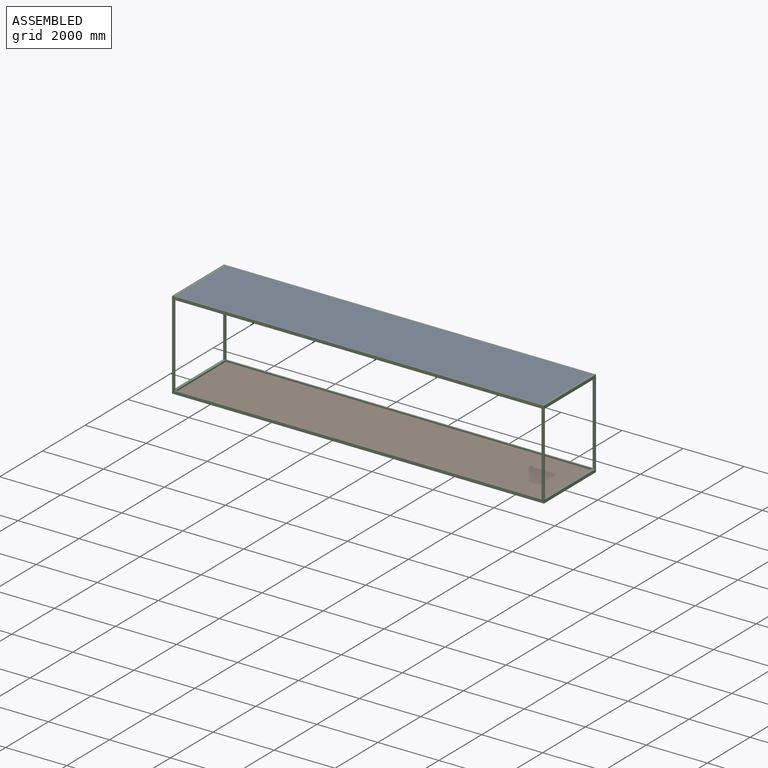
[diagram: assembled view]
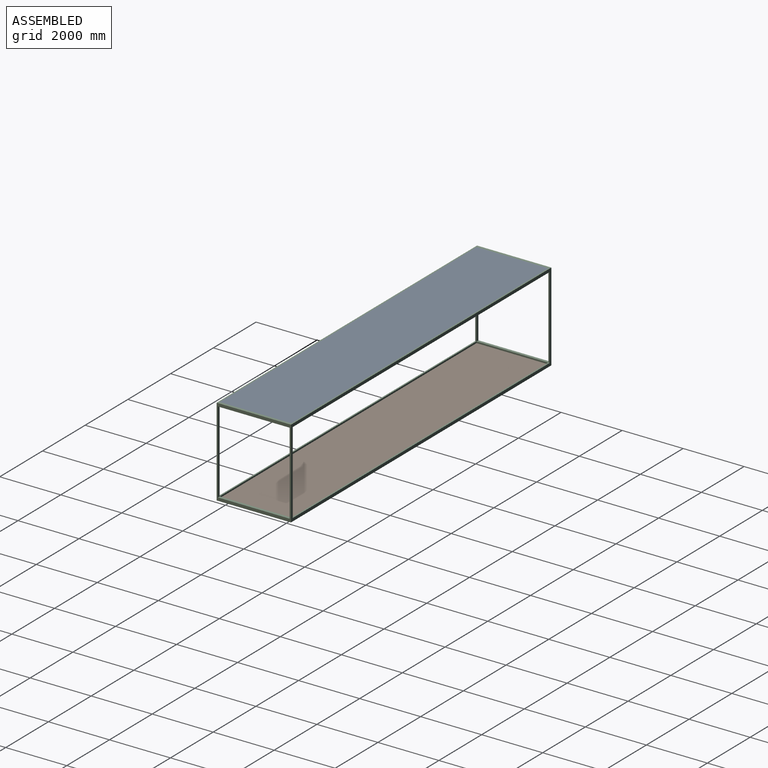
[diagram: assembled view, second angle]
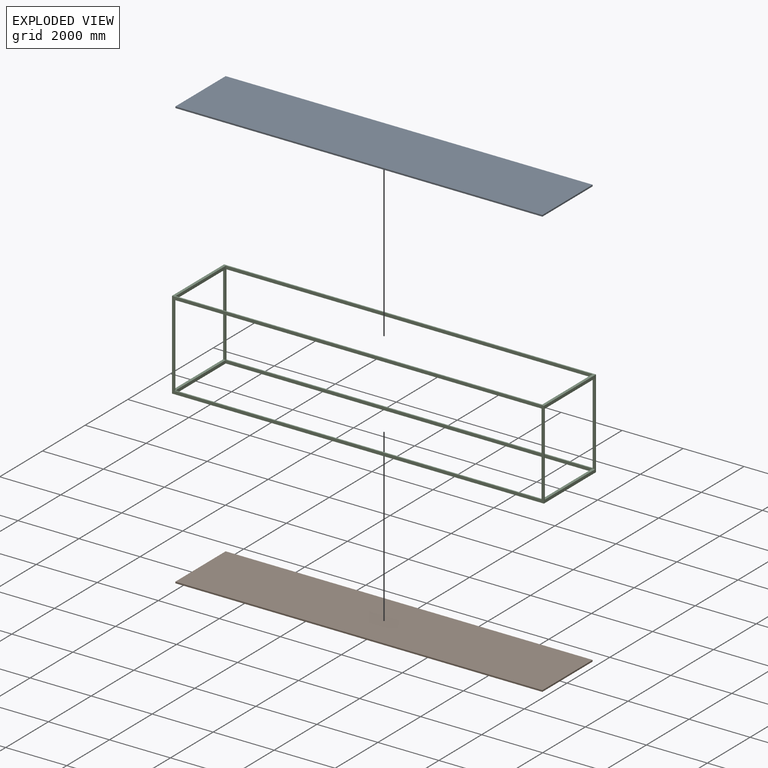
[diagram: exploded view]
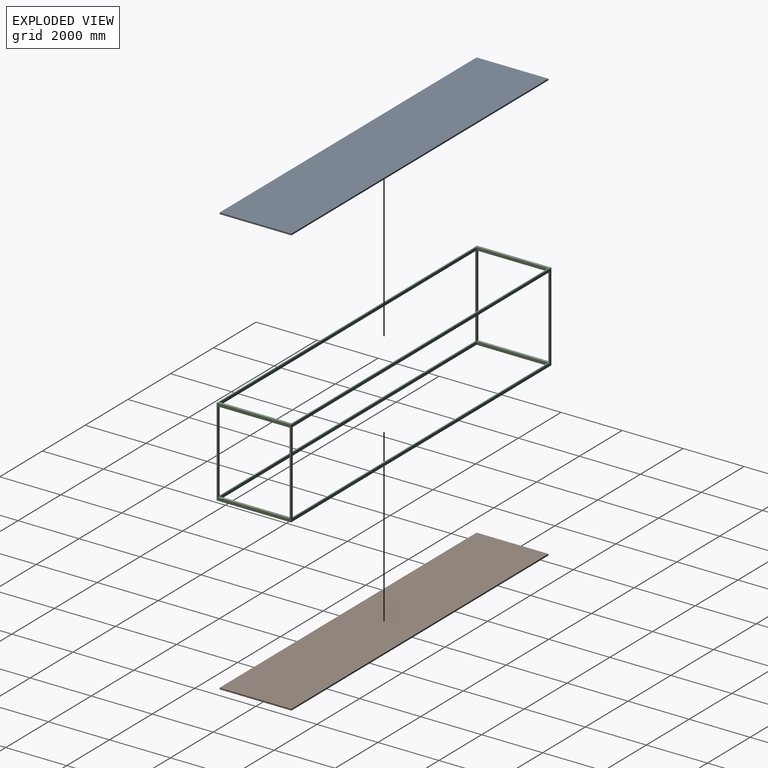
[diagram: exploded view, second angle]
ASSEMBLY  parts=3 mates=2
PART A: 6 faces, bbox 12030x2352x50 mm
  f0: plane 2352x50mm, normal (1,0,0), area 117600mm2, adj f1,f3,f4,f5
  f1: plane 12030x50mm, normal (0,1,0), area 601500mm2, adj f0,f2,f4,f5
  f2: plane 2352x50mm, normal (-1,0,0), area 117600mm2, adj f1,f3,f4,f5
  f3: plane 12030x50mm, normal (0,-1,0), area 601500mm2, adj f0,f2,f4,f5
  f4: plane 12030x2352mm, normal (0,0,1), area 28294560mm2, adj f0,f1,f2,f3
  f5: plane 12030x2352mm, normal (0,0,-1), area 28294560mm2, adj f0,f1,f2,f3
PART B: same geometry as A
PART C: 24 faces, bbox 12192x2438x2896 mm
  f0: plane 2695x43mm, normal (-1,0,0), area 115885mm2, adj f7,f17,f19,f23
  f1: plane 2695x43mm, normal (1,0,0), area 115885mm2, adj f7,f17,f19,f21
  f2: plane 12020x100.5mm, normal (0,-1,0), area 1208010mm2, adj f3,f5,f15,f19
  f3: plane 2350x100.5mm, normal (-1,0,0), area 236175mm2, adj f2,f4,f15,f19
  f4: plane 12020x100.5mm, normal (0,1,0), area 1208010mm2, adj f3,f5,f15,f19
  f5: plane 2350x100.5mm, normal (1,0,0), area 236175mm2, adj f2,f4,f15,f19
  f6: plane 2896x2438mm, normal (1,0,0), area 721808mm2, adj f7,f13,f14,f15,f17,f19,f22,f23
  f7: plane 12192x2896mm, normal (0,1,0), area 2887182mm2, adj f0,f1,f6,f8,f14,f15,f17,f19
  f8: plane 2896x2438mm, normal (-1,0,0), area 721808mm2, adj f7,f13,f14,f15,f17,f19,f20,f21
  f9: plane 12020x100.5mm, normal (0,-1,0), area 1208010mm2, adj f10,f12,f14,f17
  f10: plane 2350x100.5mm, normal (-1,0,0), area 236175mm2, adj f9,f11,f14,f17
  f11: plane 12020x100.5mm, normal (0,1,0), area 1208010mm2, adj f10,f12,f14,f17
  f12: plane 2350x100.5mm, normal (1,0,0), area 236175mm2, adj f9,f11,f14,f17
  f13: plane 12192x2896mm, normal (0,-1,0), area 2887182mm2, adj f6,f8,f14,f15,f16,f17,f18,f19
  f14: plane 12192x2438mm, normal (0,0,1), area 1477096mm2, adj f6,f7,f8,f9,f10,f11,f12,f13
  f15: plane 12192x2438mm, normal (0,0,-1), area 1477096mm2, adj f2,f3,f4,f5,f6,f7,f8,f13
  f16: plane 2695x43mm, normal (-1,0,0), area 115885mm2, adj f13,f17,f19,f22
  f17: plane 12192x2438mm, normal (0,0,-1), area 1463164mm2, adj f0,f1,f6,f7,f8,f9,f10,f11
  f18: plane 2695x43mm, normal (1,0,0), area 115885mm2, adj f13,f17,f19,f20
  f19: plane 12192x2438mm, normal (0,0,1), area 1463164mm2, adj f0,f1,f2,f3,f4,f5,f6,f7
  f20: plane 2695x81mm, normal (0,1,0), area 218295mm2, adj f8,f17,f18,f19
  f21: plane 2695x81mm, normal (0,-1,0), area 218295mm2, adj f1,f8,f17,f19
  f22: plane 2695x81mm, normal (0,1,0), area 218295mm2, adj f6,f16,f17,f19
  f23: plane 2695x81mm, normal (0,-1,0), area 218295mm2, adj f0,f6,f17,f19
PLACE A t=(0,0,2846)mm
PLACE B rot(axis=(1,0,0),180deg) t=(0,0,50)mm
PLACE C at identity fixed
MATE fastened C.f15 <-> B.f4  axis (0,0,-1) through (0,0,0)mm
MATE fastened A.f4 <-> C.f14  axis (0,0,1) through (0,0,2896)mm
